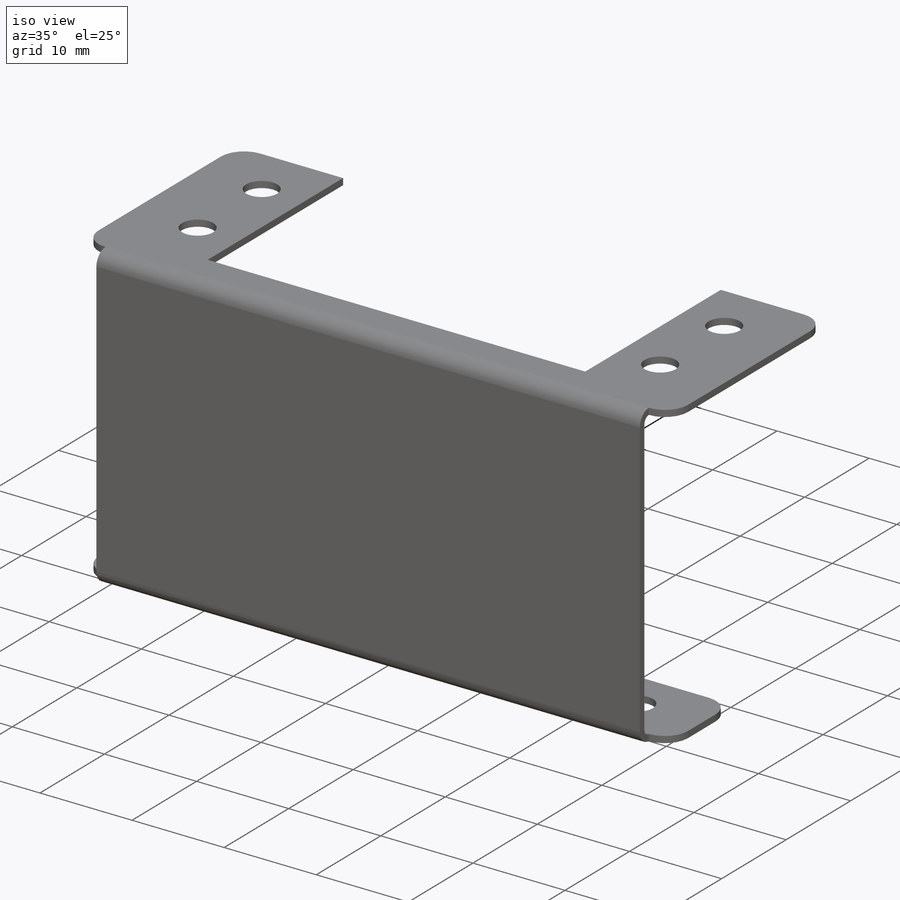
[diagram: iso view]
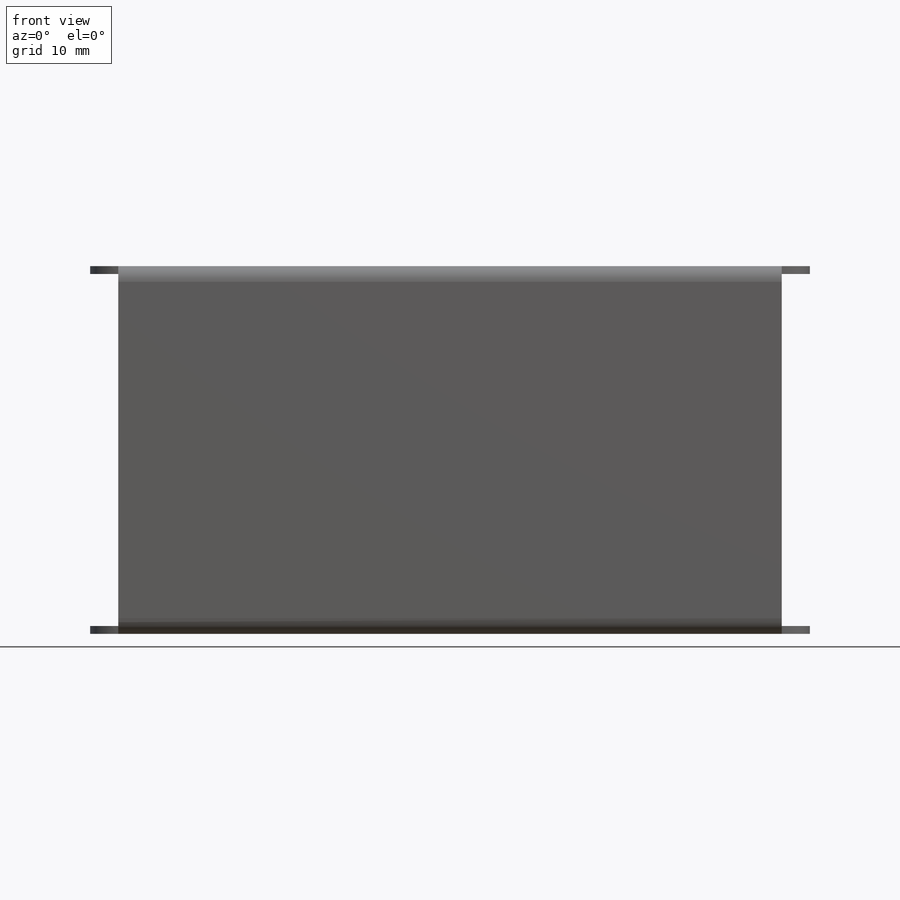
[diagram: front view]
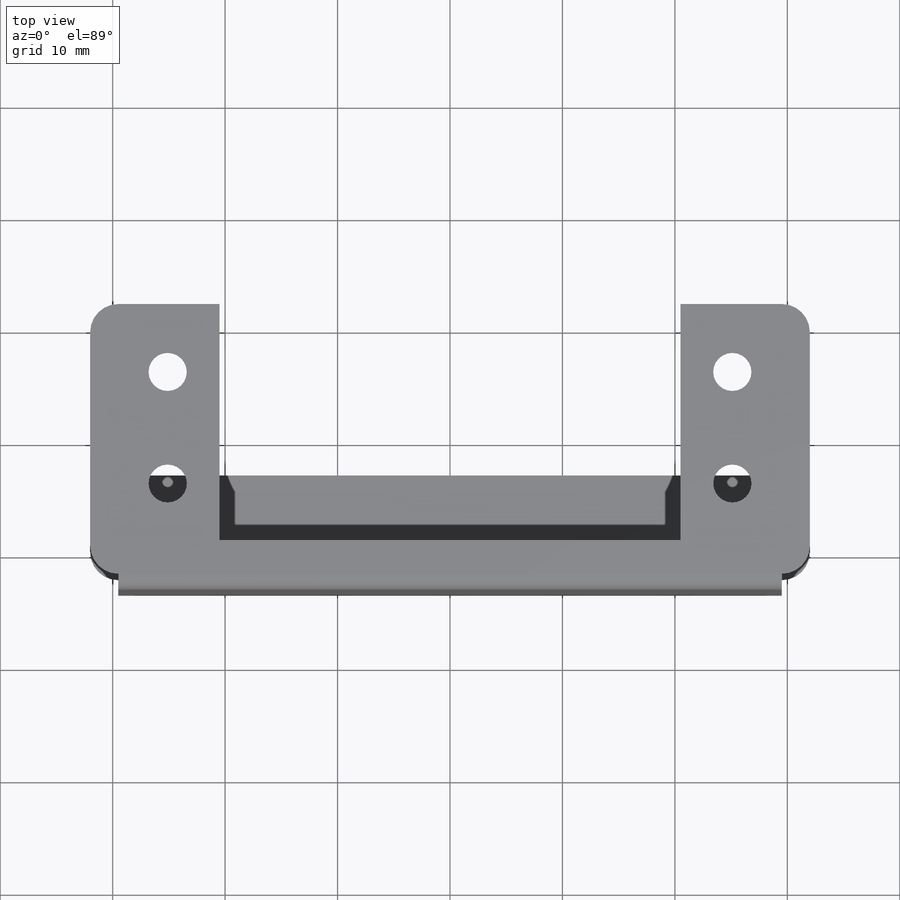
[diagram: top view]
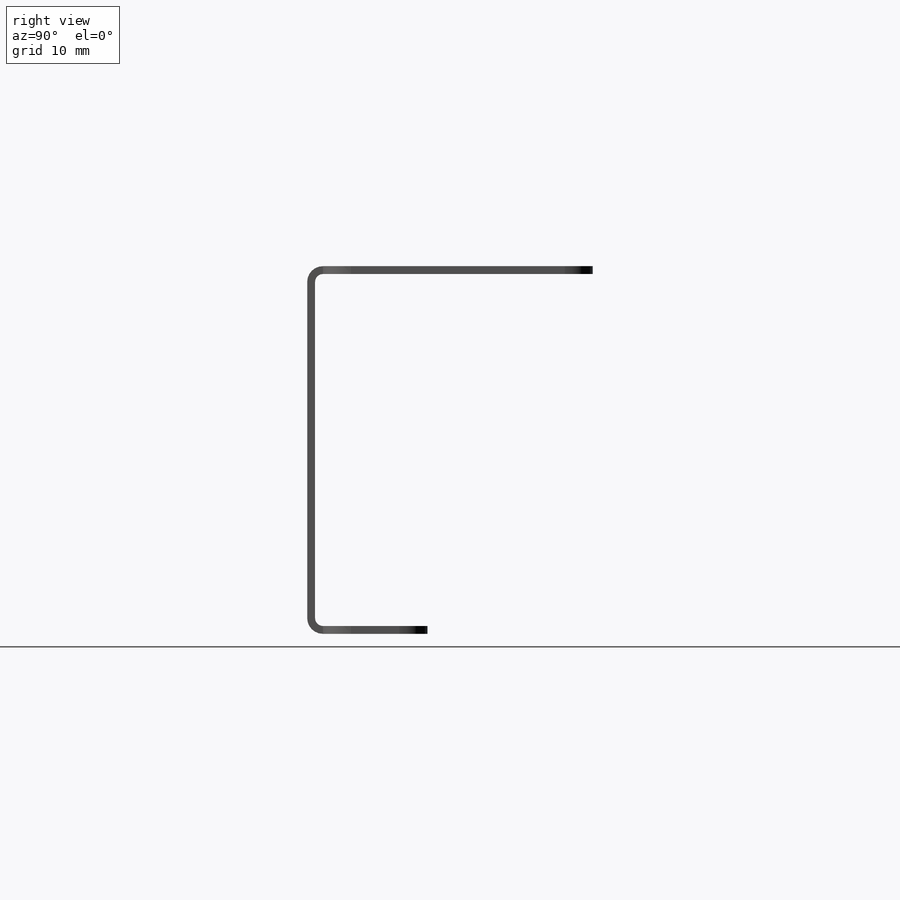
[diagram: right view]
SOLIDWORKS PART (.sldprt)
format: sldprt  version: not decoded by parser v0  size: 312,320 bytes
history: native  units: mm
features: sketch x9, sheet_metal_op x3, cut_extrude x3, material x1 + 2 further entries (+11 scaffold rows collapsed; 1 parser-record rows omitted)
feature tree (30):
  scaffold x11  (default folders/planes/origin — collapsed)
  material  "6061 Alloy"
  sketch  "Sketch4"  dims[D1=24.0mm D2=64.0mm]
  sheet_metal_op  "Sheet-Metal2"
  sheet_metal_op  "Base-Flange2"
  sketch  "Sketch7"  dims[D1=41.0mm D2=21.0mm]
  cut_extrude  "Cut-Extrude1"  [1 undecoded]
  sketch  "Sketch8"  dims[c1.D3=3.4mm c1.D1=20.0mm c1.D2=4.788mm c1.D4=9.931mm c2.D2=50.216mm]
  cut_extrude  "Cut-Extrude2"  [1 undecoded]
  sketch  "Sketch11"  dims[c1.D1=32.0mm c1.D2=59.0mm c2.D1=0.7mm c2.D4=90.0deg c2.D5=1.0 c2.D8=0.5mm c2.D9=0.5mm c3.D1=0.7366mm c3.D2=500.0mm c3.D3=0.0mm c3.D6=10.0mm c3.D7=32.0mm]
  sketch  "Sketch14"  dims[c1.D1=10.0mm c2.D1=0.7mm c2.D4=90.0deg c2.D5=2.0 c2.D8=0.5mm c2.D9=0.5mm c3.D1=0.7366mm c3.D2=500.0mm c3.D3=0.0mm c3.D6=10.0mm c3.D7=10.0mm]
  sketch  "Sketch16"
  sheet_metal_op  "Tab1"
  sketch  "Sketch15"  dims[D1=3.4mm D2=50.0mm]
  cut_extrude  "Cut-Extrude3"  Depth=2.499mm
  "Flat-Pattern2"
  sketch  "Bend-Lines2"
  sketch  "Bounding-Box2"
  "Flatten-<EdgeBend2>1"
  parser-record x1  (decoder bookkeeping rows leaked as tree rows — omitted from the tree; the rows remain in map.json)
decode coverage: 7 of 15 modeling features carry decoded parameters; 2 rows unclassified (native names shown)
note: 2 parameter values undecoded
note: suppression state not decoded; provenance and decode notes live in map.json
